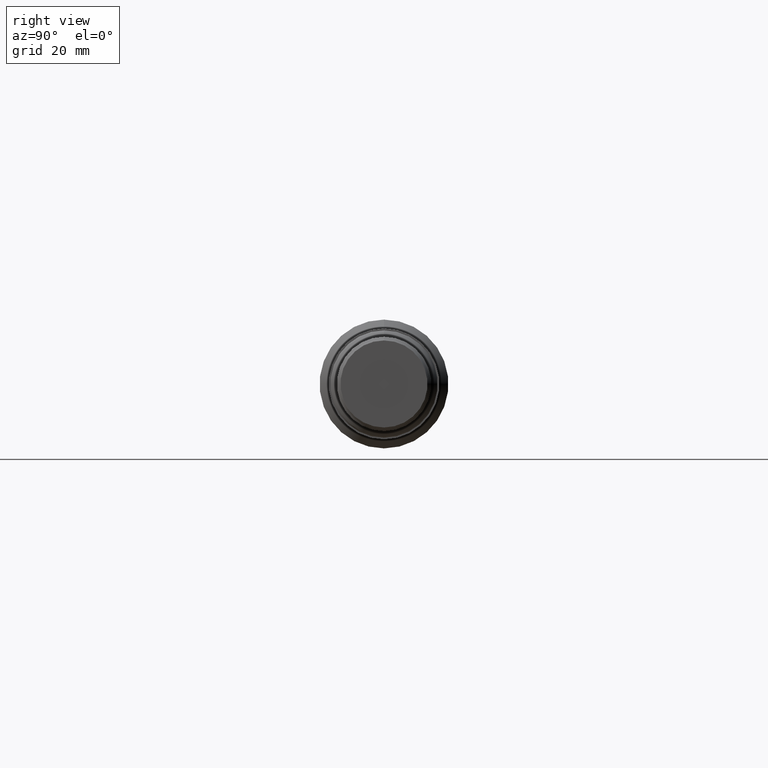
[diagram: clean part render]
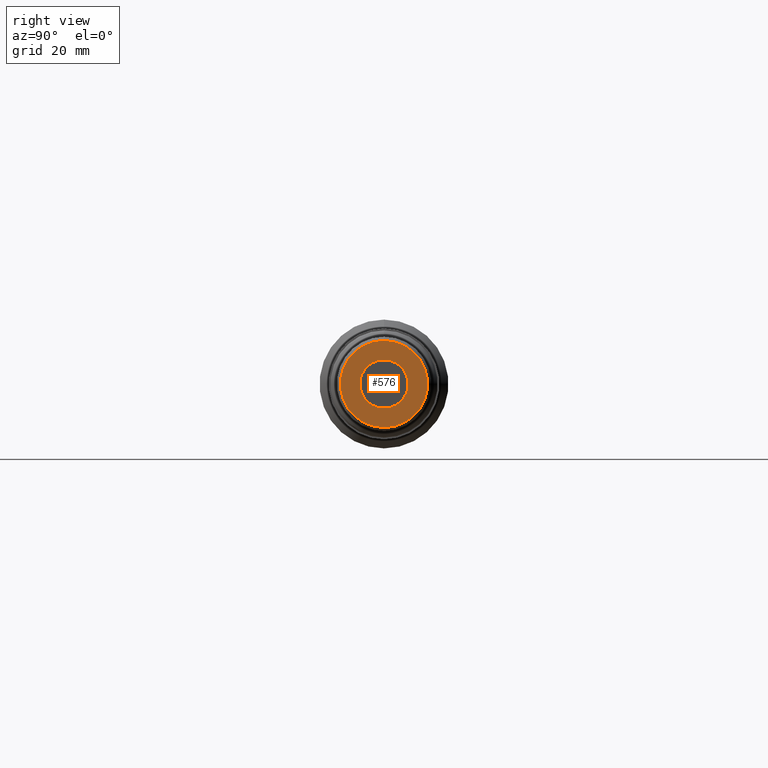
[diagram: same view with one face highlighted and labeled with its STEP entity id]
A machine part, right view. The second image highlights one B-rep face of the part: STEP entity #576.
In plain terms, the highlighted planar face has unit normal (-1, 0, -0).
Its self-contained STEP definition (entity closure, byte-faithful):
#12 = VERTEX_POINT ( 'NONE', #724 ) ;
#16 = CARTESIAN_POINT ( 'NONE',  ( 5.500000000000000000, 0.000000000000000000, 0.000000000000000000 ) ) ;
#25 = CARTESIAN_POINT ( 'NONE',  ( 5.500000000000000000, 4.174820938293329302E-17, -0.3379000000000003667 ) ) ;
#55 = CIRCLE ( 'NONE', #703, 0.3379000000000003667 ) ;
#59 = VERTEX_POINT ( 'NONE', #825 ) ;
#99 = EDGE_CURVE ( 'NONE', #839, #1017, #55, .T. ) ;
#128 = DIRECTION ( 'NONE',  ( -1.000000000000000000, 0.000000000000000000, -0.000000000000000000 ) ) ;
#199 = EDGE_CURVE ( 'NONE', #1017, #839, #293, .T. ) ;
#202 = DIRECTION ( 'NONE',  ( 0.000000000000000000, 0.000000000000000000, 1.000000000000000000 ) ) ;
#268 = CARTESIAN_POINT ( 'NONE',  ( 5.500000000000000000, 0.000000000000000000, 0.3379000000000003667 ) ) ;
#293 = CIRCLE ( 'NONE', #989, 0.3379000000000003667 ) ;
#422 = CARTESIAN_POINT ( 'NONE',  ( 5.500000000000000000, 0.000000000000000000, 0.000000000000000000 ) ) ;
#452 = EDGE_CURVE ( 'NONE', #12, #59, #957, .T. ) ;
#455 = ORIENTED_EDGE ( 'NONE', *, *, #199, .F. ) ;
#463 = AXIS2_PLACEMENT_3D ( 'NONE', #422, #581, #818 ) ;
#505 = DIRECTION ( 'NONE',  ( -1.000000000000000000, -0.000000000000000000, -0.000000000000000000 ) ) ;
#509 = DIRECTION ( 'NONE',  ( -1.000000000000000000, -0.000000000000000000, -0.000000000000000000 ) ) ;
#523 = EDGE_LOOP ( 'NONE', ( #844, #861 ) ) ;
#549 = PLANE ( 'NONE',  #939 ) ;
#576 = ADVANCED_FACE ( 'NONE', ( #857, #624 ), #549, .F. ) ;
#581 = DIRECTION ( 'NONE',  ( -1.000000000000000000, -0.000000000000000000, -0.000000000000000000 ) ) ;
#624 = FACE_BOUND ( 'NONE', #523, .T. ) ;
#658 = CARTESIAN_POINT ( 'NONE',  ( 5.500000000000000000, 0.000000000000000000, 0.000000000000000000 ) ) ;
#690 = CARTESIAN_POINT ( 'NONE',  ( 5.500000000000000000, 0.3379000000000003667, 0.000000000000000000 ) ) ;
#703 = AXIS2_PLACEMENT_3D ( 'NONE', #16, #505, #202 ) ;
#724 = CARTESIAN_POINT ( 'NONE',  ( 5.500000000000000000, 2.296212748401288034E-17, -0.1875000000000000555 ) ) ;
#772 = CARTESIAN_POINT ( 'NONE',  ( 5.500000000000000000, 0.000000000000000000, 0.000000000000000000 ) ) ;
#781 = AXIS2_PLACEMENT_3D ( 'NONE', #658, #509, #824 ) ;
#782 = DIRECTION ( 'NONE',  ( -0.000000000000000000, 0.000000000000000000, 1.000000000000000000 ) ) ;
#797 = CIRCLE ( 'NONE', #781, 0.1875000000000000555 ) ;
#818 = DIRECTION ( 'NONE',  ( 0.000000000000000000, 0.000000000000000000, 1.000000000000000000 ) ) ;
#823 = EDGE_CURVE ( 'NONE', #59, #12, #797, .T. ) ;
#824 = DIRECTION ( 'NONE',  ( 0.000000000000000000, 0.000000000000000000, 1.000000000000000000 ) ) ;
#825 = CARTESIAN_POINT ( 'NONE',  ( 5.500000000000000000, 0.000000000000000000, 0.1875000000000000555 ) ) ;
#839 = VERTEX_POINT ( 'NONE', #25 ) ;
#844 = ORIENTED_EDGE ( 'NONE', *, *, #823, .T. ) ;
#857 = FACE_OUTER_BOUND ( 'NONE', #995, .T. ) ;
#861 = ORIENTED_EDGE ( 'NONE', *, *, #452, .T. ) ;
#866 = ORIENTED_EDGE ( 'NONE', *, *, #99, .F. ) ;
#939 = AXIS2_PLACEMENT_3D ( 'NONE', #690, #128, #782 ) ;
#957 = CIRCLE ( 'NONE', #463, 0.1875000000000000555 ) ;
#989 = AXIS2_PLACEMENT_3D ( 'NONE', #772, #1016, #1020 ) ;
#995 = EDGE_LOOP ( 'NONE', ( #455, #866 ) ) ;
#1016 = DIRECTION ( 'NONE',  ( -1.000000000000000000, -0.000000000000000000, -0.000000000000000000 ) ) ;
#1017 = VERTEX_POINT ( 'NONE', #268 ) ;
#1020 = DIRECTION ( 'NONE',  ( 0.000000000000000000, 0.000000000000000000, 1.000000000000000000 ) ) ;